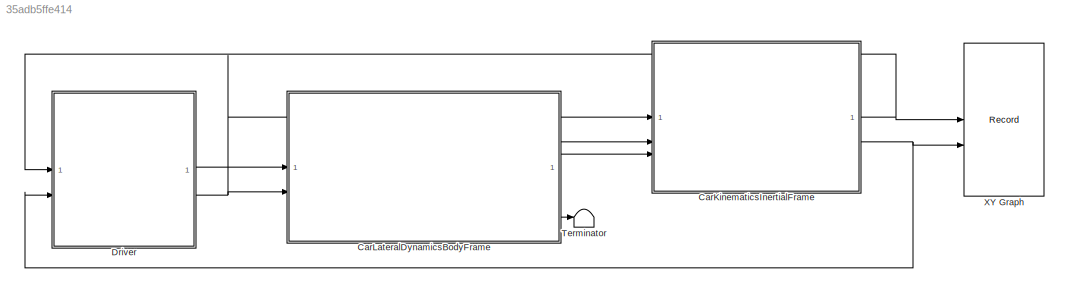
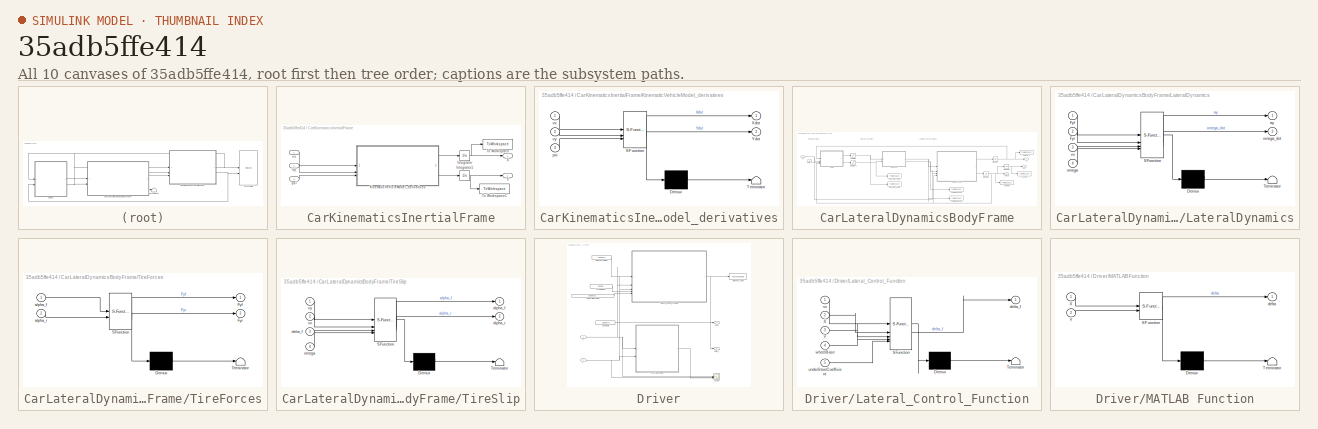
[diagram: thumbnail index - all 10 canvases of the model, root first then tree order]
MODEL slx_35adb5ffe414
KIND model
CONFIG AbsTol = auto
CONFIG EnableMultiTasking = off
CONFIG FixedStep = auto
CONFIG MaxStep = auto
CONFIG MinStep = auto
CONFIG RelTol = 1e-3
CONFIG SampleTimeConstraint = Unconstrained
CONFIG SolverName = VariableStepAuto
CONFIG StartTime = 0.0
CONFIG StopTime = 1000
BLOCK [SubSystem] CarKinematicsInertialFrame
BLOCK [Integrator] CarKinematicsInertialFrame/Integrator
  InitialCondition = carData.init.X0
BLOCK [Integrator] CarKinematicsInertialFrame/Integrator1
  InitialCondition = carData.init.Y0
BLOCK [SubSystem] CarKinematicsInertialFrame/KinematicVehicleModel_derivatives
  ErrorFcn = Stateflow.Translate.translate
  PermitHierarchicalResolution = ExplicitOnly
  SFBlockType = MATLAB Function
  TreatAsAtomicUnit = on
BLOCK [Demux] CarKinematicsInertialFrame/KinematicVehicleModel_derivatives/ Demux 
  Outputs = 1
BLOCK [S-Function] CarKinematicsInertialFrame/KinematicVehicleModel_derivatives/ SFunction 
  EnableBusSupport = on
  FunctionName = sf_sfun
  PortCounts = [3 3]
  SFcnIsStateOwnerBlock = off
  SFunctionDeploymentMode = off
  Tag = Stateflow S-Function 3
BLOCK [Terminator] CarKinematicsInertialFrame/KinematicVehicleModel_derivatives/ Terminator 
BLOCK [Outport] CarKinematicsInertialFrame/KinematicVehicleModel_derivatives/Xdot
BLOCK [Outport] CarKinematicsInertialFrame/KinematicVehicleModel_derivatives/Ydot
  Port = 2
BLOCK [Inport] CarKinematicsInertialFrame/KinematicVehicleModel_derivatives/psi
  Port = 3
BLOCK [Inport] CarKinematicsInertialFrame/KinematicVehicleModel_derivatives/vx
BLOCK [Inport] CarKinematicsInertialFrame/KinematicVehicleModel_derivatives/vy
  Port = 2
BLOCK [ToWorkspace] CarKinematicsInertialFrame/To Workspace
  FixptAsFi = on
  MaxDataPoints = inf
  SampleTime = -1
  SaveFormat = Timeseries
  VariableName = X
BLOCK [ToWorkspace] CarKinematicsInertialFrame/To Workspace1
  FixptAsFi = on
  MaxDataPoints = inf
  SampleTime = -1
  SaveFormat = Timeseries
  VariableName = Y
BLOCK [Outport] CarKinematicsInertialFrame/X
BLOCK [Outport] CarKinematicsInertialFrame/Y
  Port = 2
BLOCK [Inport] CarKinematicsInertialFrame/psi
  Port = 3
BLOCK [Inport] CarKinematicsInertialFrame/vx
BLOCK [Inport] CarKinematicsInertialFrame/vy
  Port = 2
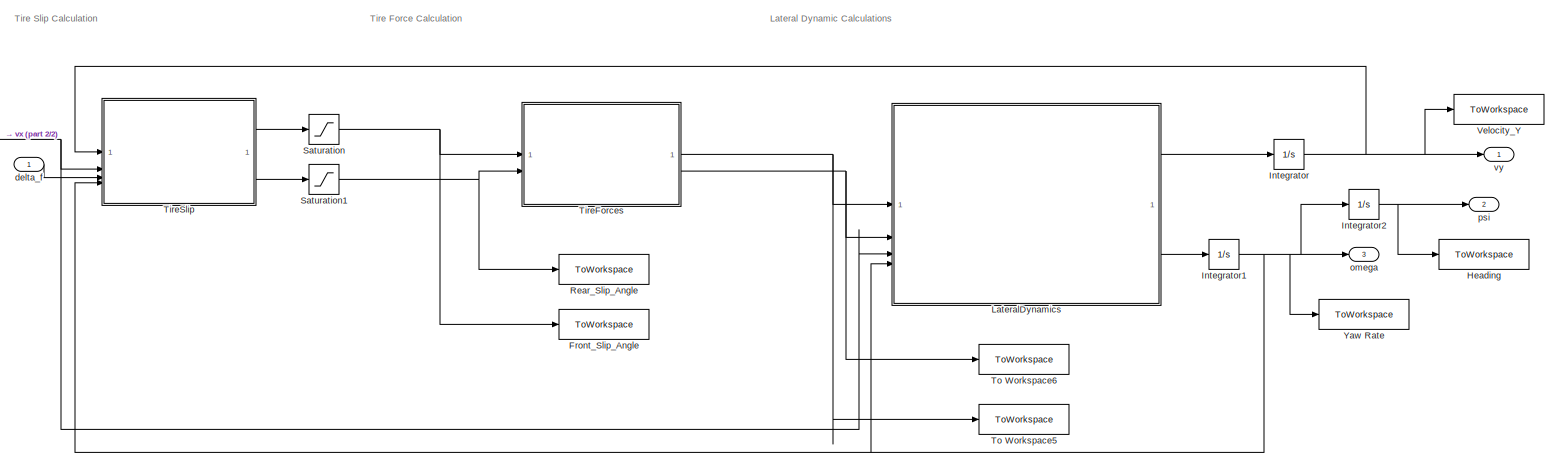
[diagram: CarLateralDynamicsBodyFrame - part 1/2, most of the canvas]
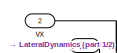
[diagram: CarLateralDynamicsBodyFrame - part 2/2, middle left region]
BLOCK [SubSystem] CarLateralDynamicsBodyFrame
BLOCK [ToWorkspace] CarLateralDynamicsBodyFrame/Front_Slip_Angle
  FixptAsFi = on
  MaxDataPoints = inf
  SampleTime = -1
  SaveFormat = Timeseries
  VariableName = alpha_f
BLOCK [ToWorkspace] CarLateralDynamicsBodyFrame/Heading
  FixptAsFi = on
  MaxDataPoints = inf
  SampleTime = -1
  SaveFormat = Timeseries
  VariableName = psi
BLOCK [Integrator] CarLateralDynamicsBodyFrame/Integrator
  InitialCondition = carData.init.vy0
BLOCK [Integrator] CarLateralDynamicsBodyFrame/Integrator1
  InitialCondition = carData.init.omega0
BLOCK [Integrator] CarLateralDynamicsBodyFrame/Integrator2
  InitialCondition = carData.init.psi0
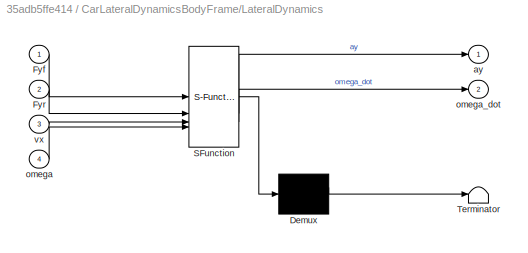
BLOCK [SubSystem] CarLateralDynamicsBodyFrame/LateralDynamics
  ErrorFcn = Stateflow.Translate.translate
  PermitHierarchicalResolution = ExplicitOnly
  SFBlockType = MATLAB Function
  TreatAsAtomicUnit = on
BLOCK [Demux] CarLateralDynamicsBodyFrame/LateralDynamics/ Demux 
  Outputs = 1
BLOCK [S-Function] CarLateralDynamicsBodyFrame/LateralDynamics/ SFunction 
  EnableBusSupport = on
  FunctionName = sf_sfun
  Parameters = obj
  PortCounts = [4 3]
  SFcnIsStateOwnerBlock = off
  SFunctionDeploymentMode = off
  Tag = Stateflow S-Function 1
BLOCK [Terminator] CarLateralDynamicsBodyFrame/LateralDynamics/ Terminator 
BLOCK [Inport] CarLateralDynamicsBodyFrame/LateralDynamics/Fyf
BLOCK [Inport] CarLateralDynamicsBodyFrame/LateralDynamics/Fyr
  Port = 2
BLOCK [Outport] CarLateralDynamicsBodyFrame/LateralDynamics/ay
BLOCK [Inport] CarLateralDynamicsBodyFrame/LateralDynamics/omega
  Port = 4
BLOCK [Outport] CarLateralDynamicsBodyFrame/LateralDynamics/omega_dot
  Port = 2
BLOCK [Inport] CarLateralDynamicsBodyFrame/LateralDynamics/vx
  Port = 3
BLOCK [ToWorkspace] CarLateralDynamicsBodyFrame/Rear_Slip_Angle
  FixptAsFi = on
  MaxDataPoints = inf
  SampleTime = -1
  SaveFormat = Timeseries
  VariableName = alpha_r
BLOCK [Saturate] CarLateralDynamicsBodyFrame/Saturation
  LowerLimit = -carData.maxAlpha
  UpperLimit = carData.maxAlpha
BLOCK [Saturate] CarLateralDynamicsBodyFrame/Saturation1
  LowerLimit = -carData.maxAlpha
  UpperLimit = carData.maxAlpha
BLOCK [SubSystem] CarLateralDynamicsBodyFrame/TireForces
  ErrorFcn = Stateflow.Translate.translate
  PermitHierarchicalResolution = ExplicitOnly
  SFBlockType = MATLAB Function
  TreatAsAtomicUnit = on
BLOCK [Demux] CarLateralDynamicsBodyFrame/TireForces/ Demux 
  Outputs = 1
BLOCK [S-Function] CarLateralDynamicsBodyFrame/TireForces/ SFunction 
  EnableBusSupport = on
  FunctionName = sf_sfun
  Parameters = obj
  PortCounts = [2 3]
  SFcnIsStateOwnerBlock = off
  SFunctionDeploymentMode = off
  Tag = Stateflow S-Function 7
BLOCK [Terminator] CarLateralDynamicsBodyFrame/TireForces/ Terminator 
BLOCK [Outport] CarLateralDynamicsBodyFrame/TireForces/Fyf
BLOCK [Outport] CarLateralDynamicsBodyFrame/TireForces/Fyr
  Port = 2
BLOCK [Inport] CarLateralDynamicsBodyFrame/TireForces/alpha_f
BLOCK [Inport] CarLateralDynamicsBodyFrame/TireForces/alpha_r
  Port = 2
BLOCK [SubSystem] CarLateralDynamicsBodyFrame/TireSlip
  ErrorFcn = Stateflow.Translate.translate
  PermitHierarchicalResolution = ExplicitOnly
  SFBlockType = MATLAB Function
  TreatAsAtomicUnit = on
BLOCK [Demux] CarLateralDynamicsBodyFrame/TireSlip/ Demux 
  Outputs = 1
BLOCK [S-Function] CarLateralDynamicsBodyFrame/TireSlip/ SFunction 
  EnableBusSupport = on
  FunctionName = sf_sfun
  Parameters = obj
  PortCounts = [4 3]
  SFcnIsStateOwnerBlock = off
  SFunctionDeploymentMode = off
  Tag = Stateflow S-Function 6
BLOCK [Terminator] CarLateralDynamicsBodyFrame/TireSlip/ Terminator 
BLOCK [Outport] CarLateralDynamicsBodyFrame/TireSlip/alpha_f
BLOCK [Outport] CarLateralDynamicsBodyFrame/TireSlip/alpha_r
  Port = 2
BLOCK [Inport] CarLateralDynamicsBodyFrame/TireSlip/delta_f
  Port = 3
BLOCK [Inport] CarLateralDynamicsBodyFrame/TireSlip/omega
  Port = 4
BLOCK [Inport] CarLateralDynamicsBodyFrame/TireSlip/vx
  Port = 2
BLOCK [Inport] CarLateralDynamicsBodyFrame/TireSlip/vy
BLOCK [ToWorkspace] CarLateralDynamicsBodyFrame/To Workspace5
  FixptAsFi = on
  MaxDataPoints = inf
  SampleTime = -1
  SaveFormat = Timeseries
  VariableName = Fyf
BLOCK [ToWorkspace] CarLateralDynamicsBodyFrame/To Workspace6
  FixptAsFi = on
  MaxDataPoints = inf
  SampleTime = -1
  SaveFormat = Timeseries
  VariableName = Fyr
BLOCK [ToWorkspace] CarLateralDynamicsBodyFrame/Velocity_Y
  FixptAsFi = on
  MaxDataPoints = inf
  SampleTime = -1
  SaveFormat = Timeseries
  VariableName = vy
BLOCK [ToWorkspace] CarLateralDynamicsBodyFrame/Yaw Rate
  FixptAsFi = on
  MaxDataPoints = inf
  SampleTime = -1
  SaveFormat = Timeseries
  VariableName = omega
BLOCK [Inport] CarLateralDynamicsBodyFrame/delta_f
BLOCK [Outport] CarLateralDynamicsBodyFrame/omega
  Port = 3
BLOCK [Outport] CarLateralDynamicsBodyFrame/psi
  Port = 2
BLOCK [Inport] CarLateralDynamicsBodyFrame/vx
  Port = 2
BLOCK [Outport] CarLateralDynamicsBodyFrame/vy
BLOCK [SubSystem] Driver
BLOCK [Constant] Driver/Constant2
  Value = carData.vxd
BLOCK [Constant] Driver/Desired_Velocity
  Value = carData.vxd
BLOCK [SubSystem] Driver/Lateral_Control_Function
  ErrorFcn = Stateflow.Translate.translate
  PermitHierarchicalResolution = ExplicitOnly
  SFBlockType = MATLAB Function
  TreatAsAtomicUnit = on
BLOCK [Demux] Driver/Lateral_Control_Function/ Demux 
  Outputs = 1
BLOCK [S-Function] Driver/Lateral_Control_Function/ SFunction 
  EnableBusSupport = on
  FunctionName = sf_sfun
  PortCounts = [5 2]
  SFcnIsStateOwnerBlock = off
  SFunctionDeploymentMode = off
  Tag = Stateflow S-Function 2
BLOCK [Terminator] Driver/Lateral_Control_Function/ Terminator 
BLOCK [Inport] Driver/Lateral_Control_Function/X
  Port = 2
BLOCK [Inport] Driver/Lateral_Control_Function/Y
  Port = 3
BLOCK [Outport] Driver/Lateral_Control_Function/delta_f
BLOCK [Inport] Driver/Lateral_Control_Function/underSteerCoefficient
  Port = 5
BLOCK [Inport] Driver/Lateral_Control_Function/vx
BLOCK [Inport] Driver/Lateral_Control_Function/wheelBase
  Port = 4
BLOCK [SubSystem] Driver/MATLAB Function
  Commented = on
  ErrorFcn = Stateflow.Translate.translate
  PermitHierarchicalResolution = ExplicitOnly
  SFBlockType = MATLAB Function
  TreatAsAtomicUnit = on
BLOCK [Demux] Driver/MATLAB Function/ Demux 
  Outputs = 1
BLOCK [S-Function] Driver/MATLAB Function/ SFunction 
  EnableBusSupport = on
  FunctionName = sf_sfun
  PortCounts = [2 2]
  SFcnIsStateOwnerBlock = off
  SFunctionDeploymentMode = off
  Tag = Stateflow S-Function 8
BLOCK [Terminator] Driver/MATLAB Function/ Terminator 
BLOCK [Inport] Driver/MATLAB Function/X
BLOCK [Inport] Driver/MATLAB Function/Y
  Port = 2
BLOCK [Outport] Driver/MATLAB Function/delta
BLOCK [Scope] Driver/Scope
  Commented = on
  Floating = off
  NumInputPorts = 3
  ScopeSpecificationString = Simulink.scopes.TimeScopeBlockCfg('CurrentConfiguration', extmgr.ConfigurationSet(extmgr.Configuration('Core','General UI',true),extmgr.Configuration('Core','Source UI',true),extmgr.Configuration('Sources','WiredSimulink',true),extmgr.Configuration('Visuals','Time Domain',true,'SerializedDisplays',{struct('MinYLimReal','-351.50186','MaxYLimReal','1255.09761','YLabelReal','','MinYLimMag',' 0.00000'...<+2714ch>
BLOCK [ToWorkspace] Driver/Steering_Angle
  FixptAsFi = on
  MaxDataPoints = inf
  SampleTime = -1
  SaveFormat = Timeseries
  VariableName = delta_f
BLOCK [Constant] Driver/UnderSteerCoeff
  Value = carData.understeerCoeff
BLOCK [Outport] Driver/Vxd1
  Port = 2
BLOCK [Constant] Driver/WheelBase
  Value = carData.lf + carData.lr
BLOCK [Inport] Driver/X
BLOCK [Inport] Driver/Y
  Port = 2
BLOCK [Outport] Driver/delta_f
BLOCK [Terminator] Terminator
BLOCK [Record] XY Graph
  CompatibilityTag = XY
  FileSettingsInternal = {"entries":[{"content":{"excelSettings":{"content":{},"type":"Streamout.ExcelSettings"}},"type":"Streamout.FileSettingStorage","uuid":""}],"packageUris":["http:\/\/schema.mathworks.com\/mf0\/streamout_blocks\/R2020a"],"version":"1.0"}
  Layout = [1 1]
  SignalsInternal = {"entries":[{"content":{"signals":[{"content":{"blockPath":[],"dimensions":[1],"domain":"","lineColor":"#a2142f","plots":[ 1 ],"port":1,"sid":[""],"signalID":1,"signalName":"CarKinematicsInertialFrame:1"},"type":"RecordBlkView.Signal","uuid":""},{"content":{"blockPath":[],"dimensions":[1],"domain":"","lineColor":"#139fff","plots":[ 1 ],"port":2,"sid":[""],"signalID":2,"signalName":"CarKinematicsIn...<+202ch>
  VisualizationBindings = {"xyplotplugin":{"info":[{"series":[{"bindingParametersList":[{"parameter":"X-Axis","signalID":1,"signalName":"CarKinematicsInertialFrame:1"},{"parameter":"Y-Axis","signalID":2,"signalName":"CarKinematicsInertialFrame:2"}],"seriesID":0}],"subplotID":1}]}}
  st = -1
ANNOTATION CarLateralDynamicsBodyFrame: Lateral Dynamic Calculations
ANNOTATION CarLateralDynamicsBodyFrame: Tire Force Calculation
ANNOTATION CarLateralDynamicsBodyFrame: Tire Slip Calculation
NET CarKinematicsInertialFrame/Integrator1:1 -> CarKinematicsInertialFrame/To Workspace1:1, CarKinematicsInertialFrame/Y:1
NET CarKinematicsInertialFrame/Integrator:1 -> CarKinematicsInertialFrame/To Workspace:1, CarKinematicsInertialFrame/X:1
LINE CarKinematicsInertialFrame/KinematicVehicleModel_derivatives:1 -> CarKinematicsInertialFrame/Integrator:1
LINE CarKinematicsInertialFrame/KinematicVehicleModel_derivatives:2 -> CarKinematicsInertialFrame/Integrator1:1
LINE CarKinematicsInertialFrame/psi:1 -> CarKinematicsInertialFrame/KinematicVehicleModel_derivatives:3
LINE CarKinematicsInertialFrame/vx:1 -> CarKinematicsInertialFrame/KinematicVehicleModel_derivatives:1
LINE CarKinematicsInertialFrame/vy:1 -> CarKinematicsInertialFrame/KinematicVehicleModel_derivatives:2
NET CarKinematicsInertialFrame:1 -> Driver:1, XY Graph:1
NET CarKinematicsInertialFrame:2 -> Driver:2, XY Graph:2
NET CarLateralDynamicsBodyFrame/Integrator1:1 -> CarLateralDynamicsBodyFrame/Integrator2:1, CarLateralDynamicsBodyFrame/LateralDynamics:4, CarLateralDynamicsBodyFrame/TireSlip:4, CarLateralDynamicsBodyFrame/Yaw Rate:1, CarLateralDynamicsBodyFrame/omega:1
NET CarLateralDynamicsBodyFrame/Integrator2:1 -> CarLateralDynamicsBodyFrame/Heading:1, CarLateralDynamicsBodyFrame/psi:1
NET CarLateralDynamicsBodyFrame/Integrator:1 -> CarLateralDynamicsBodyFrame/TireSlip:1, CarLateralDynamicsBodyFrame/Velocity_Y:1, CarLateralDynamicsBodyFrame/vy:1
LINE CarLateralDynamicsBodyFrame/LateralDynamics:1 -> CarLateralDynamicsBodyFrame/Integrator:1
LINE CarLateralDynamicsBodyFrame/LateralDynamics:2 -> CarLateralDynamicsBodyFrame/Integrator1:1
NET CarLateralDynamicsBodyFrame/Saturation1:1 -> CarLateralDynamicsBodyFrame/Rear_Slip_Angle:1, CarLateralDynamicsBodyFrame/TireForces:2
NET CarLateralDynamicsBodyFrame/Saturation:1 -> CarLateralDynamicsBodyFrame/Front_Slip_Angle:1, CarLateralDynamicsBodyFrame/TireForces:1
NET CarLateralDynamicsBodyFrame/TireForces:1 -> CarLateralDynamicsBodyFrame/LateralDynamics:1, CarLateralDynamicsBodyFrame/To Workspace5:1
NET CarLateralDynamicsBodyFrame/TireForces:2 -> CarLateralDynamicsBodyFrame/LateralDynamics:2, CarLateralDynamicsBodyFrame/To Workspace6:1
LINE CarLateralDynamicsBodyFrame/TireSlip:1 -> CarLateralDynamicsBodyFrame/Saturation:1
LINE CarLateralDynamicsBodyFrame/TireSlip:2 -> CarLateralDynamicsBodyFrame/Saturation1:1
LINE CarLateralDynamicsBodyFrame/delta_f:1 -> CarLateralDynamicsBodyFrame/TireSlip:3
NET CarLateralDynamicsBodyFrame/vx:1 -> CarLateralDynamicsBodyFrame/LateralDynamics:3, CarLateralDynamicsBodyFrame/TireSlip:2
LINE CarLateralDynamicsBodyFrame:1 -> CarKinematicsInertialFrame:2
LINE CarLateralDynamicsBodyFrame:2 -> CarKinematicsInertialFrame:3
LINE CarLateralDynamicsBodyFrame:3 -> Terminator:1
LINE Driver/Constant2:1 -> Driver/Vxd1:1
LINE Driver/Desired_Velocity:1 -> Driver/Lateral_Control_Function:1
NET Driver/Lateral_Control_Function:1 -> Driver/Steering_Angle:1, Driver/delta_f:1
LINE Driver/MATLAB Function:1 -> Driver/Scope:3
LINE Driver/UnderSteerCoeff:1 -> Driver/Lateral_Control_Function:5
LINE Driver/WheelBase:1 -> Driver/Lateral_Control_Function:4
NET Driver/X:1 -> Driver/Lateral_Control_Function:2, Driver/MATLAB Function:1, Driver/Scope:1
NET Driver/Y:1 -> Driver/Lateral_Control_Function:3, Driver/MATLAB Function:2, Driver/Scope:2
LINE Driver:1 -> CarLateralDynamicsBodyFrame:1
NET Driver:2 -> CarKinematicsInertialFrame:1, CarLateralDynamicsBodyFrame:2
note: NET lines group one-source signal fan-out (src -> all destinations, sorted); 1:1 wires keep LINE
CHART CarLateralDynamicsBodyFrame/LateralDynamics states=1 transitions=1
  STATE_LABEL 'eML_blk_kernel()'
  STATE_LABEL 'SCRIPT:\nfunction [ay, omega_dot] = fcn(Fyf, Fyr, vx, omega, obj)\n\nFy = Fyf + Fyr; % new forces\nay = Fy / obj.Mass - omega * vx; % acceleration\n        \nM  = Fyf * obj.lf - Fyr * obj.lr;        \nomega_dot = M / obj.Inertia;        \n\nend'
CHART Driver/Lateral_Control_Function states=1 transitions=1
  STATE_LABEL 'eML_blk_kernel()'
  STATE_LABEL 'SCRIPT:\nfunction delta_f   = latControl(vx,X,Y,wheelBase,underSteerCoefficient)\ntrack_radius = 200;\ntrack_length = 900;\ntrack_seg1_x0 = 0; % [0, 0]\ntrack_seg1_y0 = 0;\ntrack_seg1_x1 = track_length; % [900, 0]\ntrack_seg1_y1 = 0;\ntrack_seg2_x0 = track_seg1_x1; % [900, 0]\ntrack_seg2_y0 = track_seg1_y1;\ntrack_seg2_x1 = track_seg2_x0; % [900, 400]\ntrack_seg2_y1 = track_seg2_y0 + 2 * track_radius;\ntrack_...<+853ch>'
CHART CarKinematicsInertialFrame/KinematicVehicleModel_derivatives states=1 transitions=1
  STATE_LABEL 'eML_blk_kernel()'
  STATE_LABEL 'SCRIPT:\nfunction [Xdot, Ydot] = fcn(vx, vy, psi)\n    temp = TF(psi) * [vx;vy]; \n    Xdot = temp(1);\n    Ydot = temp(2);\n  \nend\n\nfunction y = TF(psi)\n    y = [cos(psi), -sin(psi); sin(psi), cos(psi)];\nend'
CHART CarLateralDynamicsBodyFrame/TireSlip states=1 transitions=1
  STATE_LABEL 'eML_blk_kernel()'
  STATE_LABEL 'SCRIPT:\nfunction [alpha_f, alpha_r] = fcn(vy,  vx, delta_f, omega, obj)\n\n\nif abs(vx)> obj.vx_threshold1\n      alpha_f = delta_f - (vy + omega * obj.lf) / vx; % small angle approx\n      alpha_r = - (vy - omega * obj.lr) / vx; % small angle approx\nelse\n      alpha_f = 0;\n      alpha_r = 0;\nend\n\n\n\nend'
CHART CarLateralDynamicsBodyFrame/TireForces states=1 transitions=1
  STATE_LABEL 'eML_blk_kernel()'
  STATE_LABEL 'SCRIPT:\nfunction [Fyf, Fyr] = fcn(alpha_f, alpha_r, obj)\n\nFyf = min(obj.Fyfmax,obj.Calpha_f * alpha_f);\nFyr = min(obj.Fyrmax, obj.Calpha_r * alpha_r);\nend'
CHART Driver/MATLAB Function states=1 transitions=1
  STATE_LABEL 'eML_blk_kernel()'
  STATE_LABEL 'SCRIPT:\nfunction delta = SimplestDriver(X,Y)\n\n%===============================\n% if abs(Y)<0.5\n%     delta = 0;\n% elseif abs(Y - 400) < 0.5\n%     delta = 0;\n% elseif X > 900\n%     delta = 5;\n% else\n%     delta = -5;\n% end\n\n\n\n%===============================\n% if X > 900\n%     delta = 5;\n% elseif X < 0\n%     delta = -5;\n% else\n%     delta = 0;\n% end\n\n%===============================\nif X > 900\n    ...<+63ch>'
CHART  states=0 transitions=0
CHART  states=0 transitions=0
CHART  states=0 transitions=0
CHART  states=0 transitions=0
CHART  states=0 transitions=0
CHART  states=0 transitions=0
